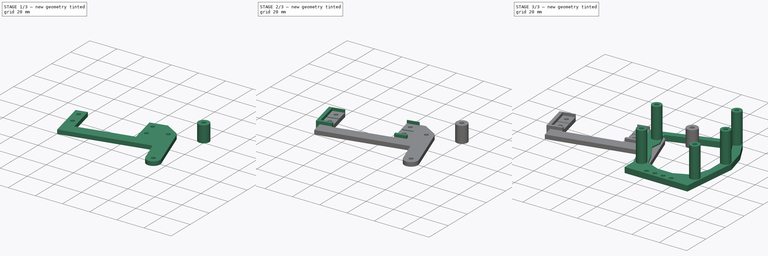
[diagram: build sequence overview — one tinted view per stage of 3, left to right]
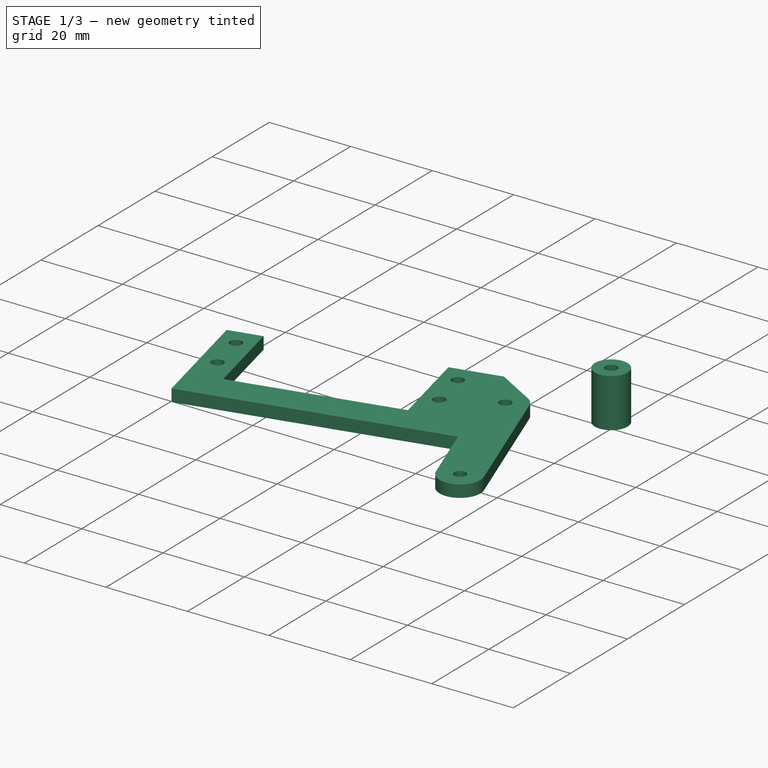
[diagram: stage 1 of 3 — iso view after this stage's code; geometry added in this stage tinted green]
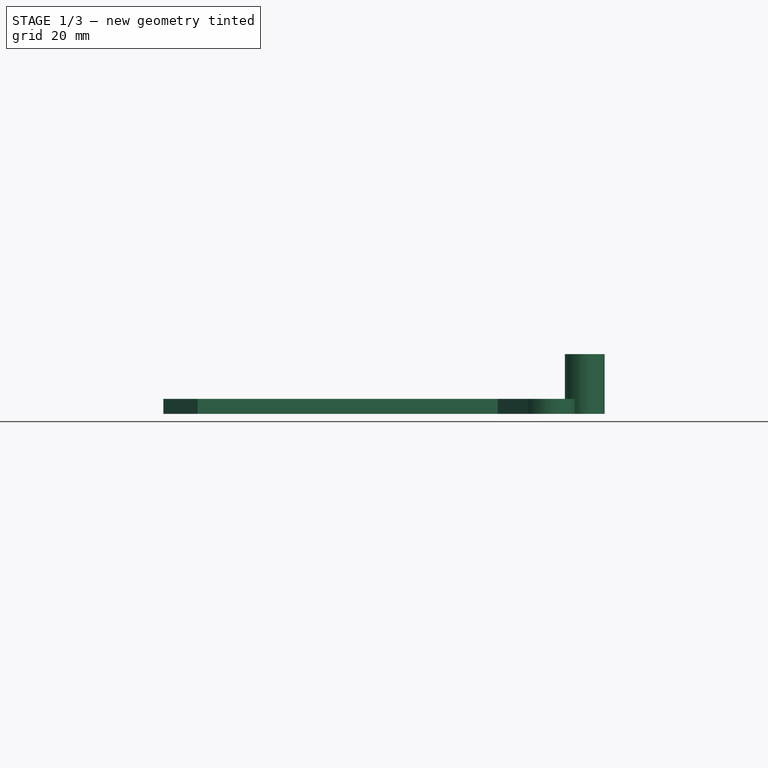
[diagram: stage 1 of 3 — front view after this stage's code; geometry added in this stage tinted green]
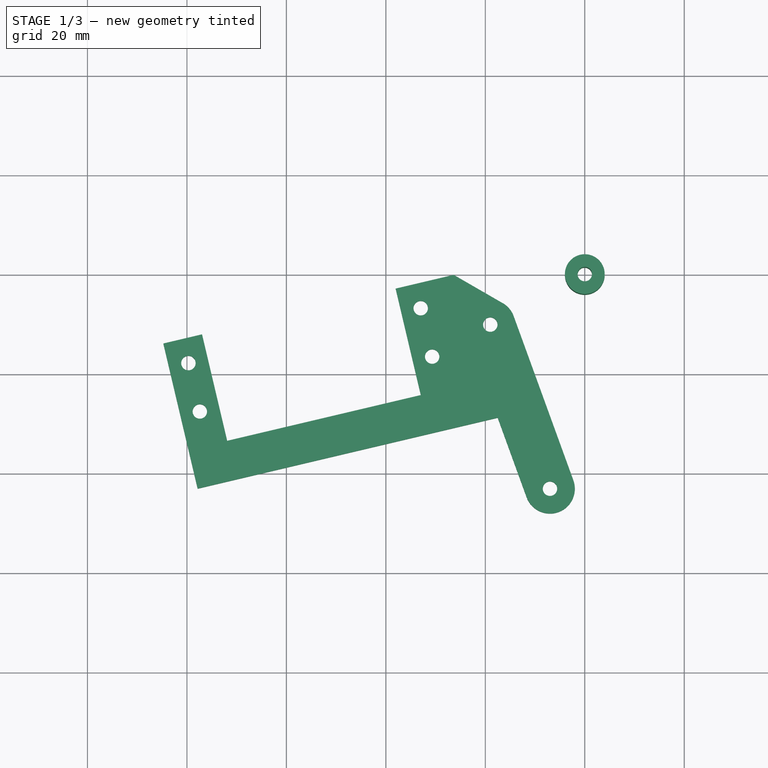
[diagram: stage 1 of 3 — top view after this stage's code; geometry added in this stage tinted green]
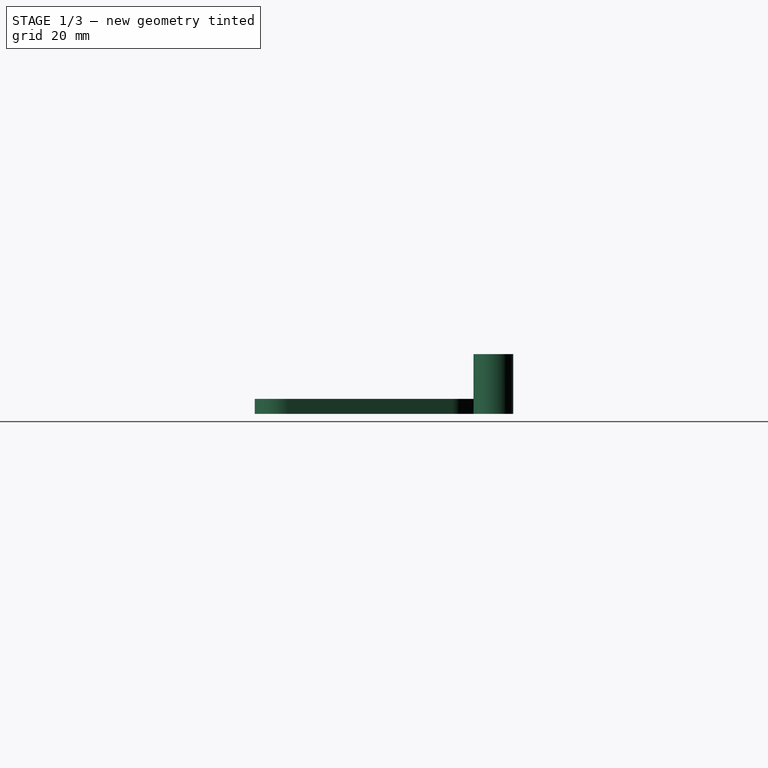
[diagram: stage 1 of 3 — right view after this stage's code; geometry added in this stage tinted green]
FCSTD DOCUMENT  (FreeCAD 0.20R29177 +426 (Git))
Label: gunholder
License: All rights reserved
LicenseURL: http://en.wikipedia.org/wiki/All_rights_reserved
objects: Sketcher::SketchObject×8, PartDesign::Pad×6, PartDesign::Body×3, Image::ImagePlane×1, Spreadsheet::Sheet×1, PartDesign::Pocket×1
note: 25 computed .brp shape members not serialized (recipe doc carries the construction recipe); baked Part::Feature solids carry a one-line shape summary decoded from their .brp

FEATURE [PartDesign::Body] Body
  Group = -> [Sketch,Pad,Sketch001,Pad001]
  Origin = -> Origin
  Tip = -> Pad001
FEATURE [Sketcher::SketchObject] Sketch002
  FullyConstrained = true
  MapMode = 5
  Support = -> [XY_Plane001]
  expr: Constraints[18] = Spreadsheet.servoMountOpenWidth + Spreadsheet.servoMountScrewX * 2
  expr: Constraints[19] = Spreadsheet.servoMountScrewYDist
  expr: Constraints[1] = Spreadsheet.screwTightR
  expr: Constraints[29] = Spreadsheet.screwTightR
  expr: Constraints[2] = Spreadsheet.topScrewX
  expr: Constraints[38] = Spreadsheet.servoMountScrewX
  expr: Constraints[3] = Spreadsheet.bottomScrewXLeft
  expr: Constraints[42] = Spreadsheet.servoMountOpenHeight
  expr: Constraints[47] = Spreadsheet.servoMountScrewYToTop
  expr: Constraints[49] = Spreadsheet.servoMountScrewX * 2
  expr: Constraints[4] = Spreadsheet.topScrewY
  expr: Constraints[52] = Spreadsheet.servoMountOpenHeight + Spreadsheet.servoMountScrewX * 2
  expr: Constraints[53] = Spreadsheet.servoMountOpenWidth
  expr: Constraints[5] = Spreadsheet.bottomScrewY
  sketch-geometry (25):
    g0: Circle CenterX=-19 CenterY=-10 CenterZ=0 NormalX=0 NormalY=0 NormalZ=1 AngleXU=0 Radius=1.45
    g1: Circle CenterX=-7 CenterY=-43 CenterZ=0 NormalX=0 NormalY=0 NormalZ=1 AngleXU=0 Radius=1.45
    g2: ArcOfCircle CenterX=-19 CenterY=-10 CenterZ=0 NormalX=0 NormalY=0 NormalZ=1 AngleXU=0 Radius=5 StartAngle=0.348771 EndAngle=1.12145
    g3: ArcOfCircle CenterX=-7 CenterY=-43 CenterZ=0 NormalX=0 NormalY=0 NormalZ=1 AngleXU=0 Radius=5 StartAngle=3.49036 EndAngle=6.63196
    g4: LineSegment StartX=-17.5086 StartY=-28.7322 StartZ=0 EndX=-11.699 EndY=-44.7087 EndZ=0
    g5: LineSegment StartX=-2.30103 StartY=-41.2913 StartZ=0 EndX=-14.301 EndY=-8.29128 EndZ=0
    g6: LineSegment StartX=-32.9901 StartY=-6.70216 StartZ=0 EndX=-30.6903 EndY=-16.4341 EndZ=0
    g7: LineSegment StartX=-79.7034 StartY=-17.7412 StartZ=0 EndX=-77.4036 EndY=-27.4732 EndZ=0
    g8: LineSegment StartX=-77.4036 StartY=-27.4732 StartZ=0 EndX=-30.6903 EndY=-16.4341 EndZ=0
    g9: Circle CenterX=-79.7034 CenterY=-17.7412 CenterZ=0 NormalX=0 NormalY=0 NormalZ=1 AngleXU=0 Radius=2.27e-14
    g10: Circle CenterX=-77.4036 CenterY=-27.4732 CenterZ=0 NormalX=0 NormalY=0 NormalZ=1 AngleXU=0 Radius=1.45
    g11: Circle CenterX=-32.9901 CenterY=-6.70216 CenterZ=0 NormalX=0 NormalY=0 NormalZ=1 AngleXU=0 Radius=1.45
    g12: Circle CenterX=-30.6903 CenterY=-16.4341 CenterZ=0 NormalX=0 NormalY=0 NormalZ=1 AngleXU=0 Radius=1.45
    g13: Circle CenterX=-79.7034 CenterY=-17.7412 CenterZ=0 NormalX=0 NormalY=0 NormalZ=1 AngleXU=0 Radius=1.45
    g14: LineSegment StartX=-84.7461 StartY=-13.7952 StartZ=0 EndX=-76.9606 EndY=-11.9553 EndZ=0
    g15: LineSegment StartX=-76.9606 StartY=-11.9553 StartZ=0 EndX=-71.901 EndY=-33.3656 EndZ=0
    g16: LineSegment StartX=-71.901 StartY=-33.3656 StartZ=0 EndX=-32.9732 EndY=-24.1664 EndZ=0
    g17: LineSegment StartX=-32.9732 StartY=-24.1664 StartZ=0 EndX=-38.0328 EndY=-2.7561 EndZ=0
    g18: LineSegment StartX=-38.0328 StartY=-2.7561 StartZ=0 EndX=-34.14 EndY=-1.83618 EndZ=0
    g19: LineSegment StartX=-32.9732 StartY=-24.1664 StartZ=0 EndX=-29.0804 EndY=-23.2465 EndZ=0
    g20: LineSegment StartX=-34.14 StartY=-1.83618 StartZ=0 EndX=-32.9901 EndY=-6.70216 EndZ=0
    g21: LineSegment StartX=-84.7461 StartY=-13.7952 StartZ=0 EndX=-77.8467 EndY=-42.991 EndZ=0
    g22: LineSegment StartX=-77.8467 StartY=-42.991 StartZ=0 EndX=-17.5086 EndY=-28.7322 EndZ=0
    g23: LineSegment StartX=-34.14 StartY=-1.83618 StartZ=0 EndX=-26.3544 EndY=0.00366578 EndZ=0
    g24: LineSegment StartX=-26.3544 StartY=0.00366578 StartZ=0 EndX=-16.8281 EndY=-5.49633 EndZ=0
  constraints (67):
    c: Equal(g0,g1)
    c: Radius(g0) = 1.45
    c: DistanceX(g0,g-1) = 19
    c: DistanceX(g1,g-1) = 7
    c: DistanceY(g0,g-1) = 10
    c: DistanceY(g1,g-1) = 43
    c: Tangent(g4,g3) = -1.5708
    c: Tangent(g3,g5) = -1.5708
    c: Tangent(g5,g2) = -1.5708
    c: Equal(g2,g3)
    c: Coincident(g2,g0)
    c: Coincident(g3,g1)
    c: Radius(g2) = 5
    c: Coincident(g8,g7)
    c: Coincident(g8,g6)
    c: Equal(g6,g7)
    c: Perpendicular(g8,g6)
    c: Perpendicular(g8,g7)
    c: Distance(g8) = 48
    c: Distance(g6) = 10
    c: Coincident(g9,g7)
    c: Tangent(g9,g7)
    c: Coincident(g10,g7)
    c: Coincident(g11,g6)
    c: Coincident(g12,g6)
    c: Coincident(g13,g9)
    c: Equal(g13,g11)
    c: Equal(g13,g12)
    c: Equal(g13,g10)
    c: Radius(g13) = 1.45
    c: Coincident(g15,g14)
    c: Coincident(g16,g15)
    c: Coincident(g17,g16)
    c: Coincident(g18,g17)
    c: Parallel(g17,g6)
    c: Coincident(g19,g16)
    c: PointOnObject(g19,g6)
    c: Parallel(g19,g8)
    c: Distance(g19) = 4
    c: Parallel(g16,g8)
    c: Parallel(g15,g7)
    c: Equal(g17,g15)
    c: Distance(g17) = 22
    c: Parallel(g18,g8)
    c: Coincident(g20,g18)
    c: Coincident(g20,g11)
    c: Parallel(g20,g17)
    c: Distance(g20) = 5
    c: Parallel(g14,g8)
    c: Distance(g14) = 8
    c: Coincident(g21,g14)
    c: Parallel(g21,g15)
    c: Distance(g21) = 30
    c: Distance(g16) = 40
    c: Coincident(g22,g21)
    c: Parallel(g22,g16)
    c: Coincident(g23,g18)
    c: Coincident(g24,g23)
    c: Coincident(g2,g24)
    c: Coincident(g4,g22)
    c: Distance(g22) = 62
    c: Parallel(g23,g8)
    c: Parallel(g4,g5)
    c: Distance(g24) = 11
    c: Angle(g24,g-1) = 0.523599
    c: Distance(g4) = 17
    c: Distance(g23) = 8
FEATURE [Sketcher::SketchObject] Sketch003
  ExternalGeometry = -> [Sketch002]
  FullyConstrained = true
  MapMode = 5
  Support = -> [XY_Plane001]
  expr: Constraints[37] = Spreadsheet.screwTightR
  sketch-geometry (18):
    g0: LineSegment StartX=-84.7461 StartY=-13.7952 StartZ=0 EndX=-76.9606 EndY=-11.9553 EndZ=0
    g1: LineSegment StartX=-76.9606 StartY=-11.9553 StartZ=0 EndX=-71.901 EndY=-33.3656 EndZ=0
    g2: LineSegment StartX=-71.901 StartY=-33.3656 StartZ=0 EndX=-32.9732 EndY=-24.1664 EndZ=0
    g3: LineSegment StartX=-32.9732 StartY=-24.1664 StartZ=0 EndX=-38.0328 EndY=-2.7561 EndZ=0
    g4: LineSegment StartX=-38.0328 StartY=-2.7561 StartZ=0 EndX=-26.3544 EndY=0.00366578 EndZ=0
    g5: LineSegment StartX=-26.3544 StartY=0.00366578 StartZ=0 EndX=-16.8281 EndY=-5.49633 EndZ=0
    g6: LineSegment StartX=-14.301 StartY=-8.29128 StartZ=0 EndX=-2.30103 EndY=-41.2913 EndZ=0
    g7: LineSegment StartX=-11.699 StartY=-44.7087 StartZ=0 EndX=-17.5086 EndY=-28.7322 EndZ=0
    g8: LineSegment StartX=-17.5086 StartY=-28.7322 StartZ=0 EndX=-77.8467 EndY=-42.991 EndZ=0
    g9: LineSegment StartX=-77.8467 StartY=-42.991 StartZ=0 EndX=-84.7461 EndY=-13.7952 EndZ=0
    g10: ArcOfCircle CenterX=-19 CenterY=-10 CenterZ=0 NormalX=0 NormalY=0 NormalZ=1 AngleXU=0 Radius=5 StartAngle=0.348771 EndAngle=1.12145
    g11: ArcOfCircle CenterX=-7 CenterY=-43 CenterZ=0 NormalX=0 NormalY=0 NormalZ=1 AngleXU=0 Radius=5 StartAngle=3.49036 EndAngle=6.63196
    g12: Circle CenterX=-79.7034 CenterY=-17.7412 CenterZ=0 NormalX=0 NormalY=0 NormalZ=1 AngleXU=0 Radius=1.45
    g13: Circle CenterX=-77.4036 CenterY=-27.4732 CenterZ=0 NormalX=0 NormalY=0 NormalZ=1 AngleXU=0 Radius=1.45
    g14: Circle CenterX=-32.9901 CenterY=-6.70216 CenterZ=0 NormalX=0 NormalY=0 NormalZ=1 AngleXU=0 Radius=1.45
    g15: Circle CenterX=-30.6903 CenterY=-16.4341 CenterZ=0 NormalX=0 NormalY=0 NormalZ=1 AngleXU=0 Radius=1.45
    g16: Circle CenterX=-19 CenterY=-10 CenterZ=0 NormalX=0 NormalY=0 NormalZ=1 AngleXU=0 Radius=1.45
    g17: Circle CenterX=-7 CenterY=-43 CenterZ=0 NormalX=0 NormalY=0 NormalZ=1 AngleXU=0 Radius=1.45
  constraints (38):
    c: Coincident(g0,g-3)
    c: Coincident(g0,g-4)
    c: Coincident(g1,g0)
    c: Coincident(g1,g-5)
    c: Coincident(g2,g1)
    c: Coincident(g2,g-6)
    c: Coincident(g3,g2)
    c: Coincident(g3,g-6)
    c: Coincident(g4,g3)
    c: Coincident(g4,g-8)
    c: Coincident(g5,g4)
    c: Coincident(g5,g-9)
    c: Coincident(g6,g-10)
    c: Coincident(g6,g-11)
    c: Coincident(g7,g-12)
    c: Coincident(g7,g-13)
    c: Coincident(g8,g7)
    c: Coincident(g8,g-13)
    c: Coincident(g9,g8)
    c: Coincident(g9,g0)
    c: Coincident(g10,g-9)
    c: Coincident(g10,g5)
    c: Coincident(g10,g-9)
    c: Coincident(g11,g-11)
    c: Tangent(g11,g6) = 1.5708
    c: Coincident(g11,g7)
    c: Coincident(g12,g-14)
    c: Coincident(g13,g-15)
    c: Coincident(g14,g-18)
    c: Coincident(g15,g-17)
    c: Coincident(g16,g10)
    c: Coincident(g17,g11)
    c: Equal(g13,g12)
    c: Equal(g13,g15)
    c: Equal(g13,g14)
    c: Equal(g13,g16)
    c: Equal(g13,g17)
    c: Radius(g13) = 1.45
FEATURE [PartDesign::Pad] Pad002
  Direction = (0,0,1)
  Length = 3
  Length2 = 10
  Profile = -> Sketch003
  ReferenceAxis = -> Sketch003 [N_Axis]
  Type = 0
  expr: Length = Spreadsheet.servoMountPad
FEATURE [PartDesign::Body] Body001  label="Body001ServoMount"
  Group = -> [Sketch002,Sketch003,Pad002,Sketch004,Pad003,Sketch005,Pocket,Sketch006,Pad004]
  Origin = -> Origin001
  Tip = -> Pad004
FEATURE [Sketcher::SketchObject] Sketch007
  FullyConstrained = true
  MapMode = 5
  Support = -> [XY_Plane002]
  expr: Constraints[2] = Spreadsheet.screwTightR
  sketch-geometry (2):
    g0: Circle CenterX=0 CenterY=0 CenterZ=0 NormalX=0 NormalY=0 NormalZ=1 AngleXU=0 Radius=1.45
    g1: Circle CenterX=0 CenterY=0 CenterZ=0 NormalX=0 NormalY=0 NormalZ=1 AngleXU=0 Radius=4
  constraints (4):
    c: Coincident(g0,g-1)
    c: Coincident(g1,g0)
    c: Radius(g0) = 1.45
    c: Radius(g1) = 4
FEATURE [PartDesign::Pad] Pad005
  Direction = (0,0,1)
  Length = 12
  Length2 = 10
  Profile = -> Sketch007
  ReferenceAxis = -> Sketch007 [N_Axis]
  Type = 0
FEATURE [PartDesign::Body] Body002  label="Body002TriggerRod"
  Group = -> [Sketch007,Pad005]
  Origin = -> Origin002
  Tip = -> Pad005
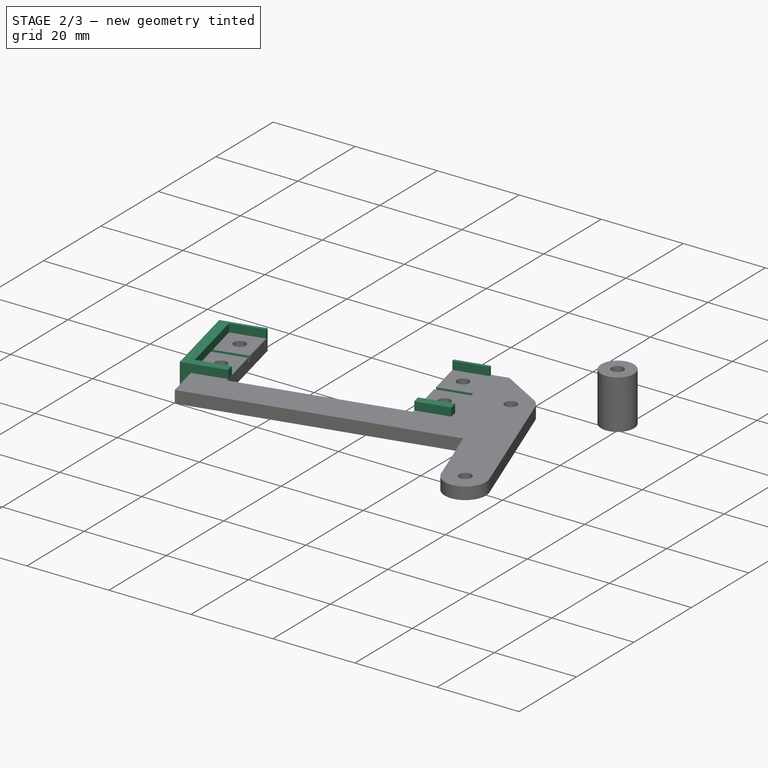
[diagram: stage 2 of 3 — iso view after this stage's code; geometry added in this stage tinted green]
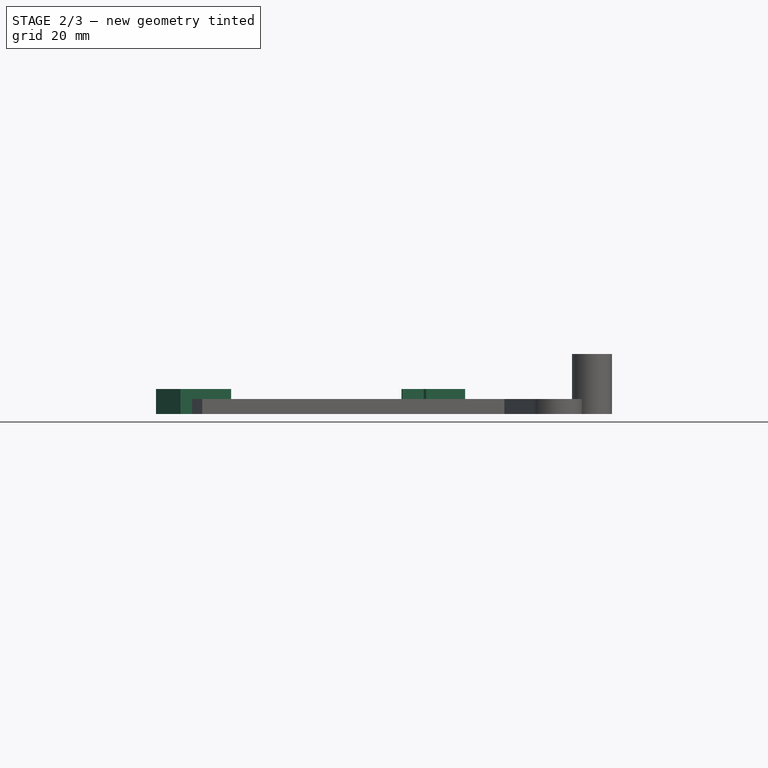
[diagram: stage 2 of 3 — front view after this stage's code; geometry added in this stage tinted green]
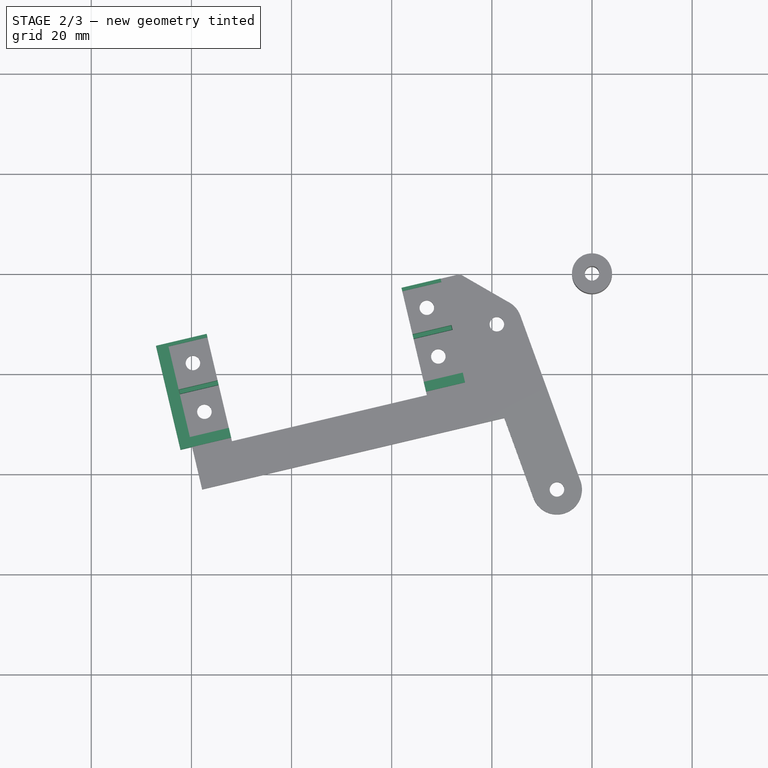
[diagram: stage 2 of 3 — top view after this stage's code; geometry added in this stage tinted green]
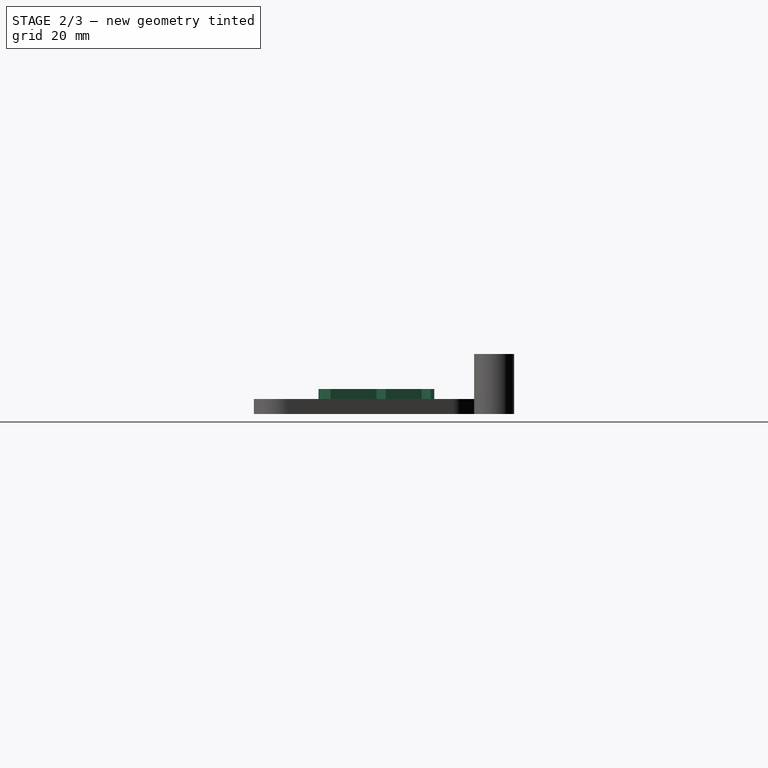
[diagram: stage 2 of 3 — right view after this stage's code; geometry added in this stage tinted green]
FEATURE [Sketcher::SketchObject] Sketch004
  ExternalGeometry = -> [Pad002]
  FullyConstrained = false
  MapMode = 5
  Support = -> [XY_Plane001]
  expr: Constraints[4] = Spreadsheet.servoMountScrewCenterToOutsideEdge
  expr: Constraints[53] = Spreadsheet.servoMountScrewX * 2
  expr: Constraints[54] = Spreadsheet.servoMountScrewX * 2
  expr: Constraints[5] = Spreadsheet.servoMountScrewCenterToOutsideEdge
  expr: Constraints[8] = Spreadsheet.servoMountScrewCenterToOutsideEdge
  expr: Constraints[9] = Spreadsheet.servoMountScrewCenterToOutsideEdge
  sketch-geometry (19):
    g0: LineSegment StartX=-95.4678 StartY=48.9676 StartZ=0 EndX=-89.5549 EndY=23.9464 EndZ=0
    g1: LineSegment StartX=-33.979 StartY=-2.51742 StartZ=0 EndX=-29.7013 EndY=-20.6188 EndZ=0
    g2: LineSegment StartX=-75.438 StartY=-17.1973 StartZ=0 EndX=-23.2655 EndY=-10.544 EndZ=0
    g3: LineSegment StartX=-84.7461 StartY=-13.7952 StartZ=0 EndX=-76.9606 EndY=-11.9553 EndZ=0
    g4: LineSegment StartX=-76.9606 StartY=-11.9553 StartZ=0 EndX=-76.7996 EndY=-12.6366 EndZ=0
    g5: LineSegment StartX=-76.7996 StartY=-12.6366 StartZ=0 EndX=-84.5851 EndY=-14.4764 EndZ=0
    g6: LineSegment StartX=-84.5851 StartY=-14.4764 StartZ=0 EndX=-84.7461 EndY=-13.7952 EndZ=0
    g7: LineSegment StartX=-80.3075 StartY=-32.5779 StartZ=0 EndX=-72.5219 EndY=-30.738 EndZ=0
    g8: LineSegment StartX=-80.3075 StartY=-32.5779 StartZ=0 EndX=-79.8475 EndY=-34.5242 EndZ=0
    g9: LineSegment StartX=-79.8475 StartY=-34.5242 StartZ=0 EndX=-72.062 EndY=-32.6844 EndZ=0
    g10: LineSegment StartX=-72.062 StartY=-32.6844 StartZ=0 EndX=-72.5219 EndY=-30.738 EndZ=0
    g11: LineSegment StartX=-38.0328 StartY=-2.7561 StartZ=0 EndX=-30.2472 EndY=-0.916258 EndZ=0
    g12: LineSegment StartX=-30.2472 StartY=-0.916258 StartZ=0 EndX=-30.0862 EndY=-1.59749 EndZ=0
    g13: LineSegment StartX=-30.0862 StartY=-1.59749 StartZ=0 EndX=-37.8718 EndY=-3.43734 EndZ=0
    g14: LineSegment StartX=-37.8718 StartY=-3.43734 StartZ=0 EndX=-38.0328 EndY=-2.7561 EndZ=0
    g15: LineSegment StartX=-25.8086 StartY=-19.6989 StartZ=0 EndX=-25.3486 EndY=-21.6453 EndZ=0
    g16: LineSegment StartX=-25.3486 StartY=-21.6453 StartZ=0 EndX=-33.1342 EndY=-23.4852 EndZ=0
    g17: LineSegment StartX=-33.1342 StartY=-23.4852 StartZ=0 EndX=-33.5941 EndY=-21.5388 EndZ=0
    g18: LineSegment StartX=-25.8086 StartY=-19.6989 StartZ=0 EndX=-33.5941 EndY=-21.5388 EndZ=0
  constraints (55):
    c: PointOnObject(g-3,g0)
    c: PointOnObject(g-4,g0)
    c: PointOnObject(g-5,g1)
    c: PointOnObject(g-6,g1)
    c: Distance(g1,g-5) = 4.3
    c: Distance(g-6,g1) = 4.3
    c: PointOnObject(g-3,g2)
    c: PointOnObject(g-7,g2)
    c: Distance(g-3,g2) = 4.3
    c: Distance(g-7,g2) = 4.3
    c: Coincident(g3,g-8)
    c: Coincident(g3,g-8)
    c: Coincident(g4,g3)
    c: PointOnObject(g4,g-10)
    c: Coincident(g5,g4)
    c: PointOnObject(g5,g-11)
    c: Coincident(g6,g5)
    c: Coincident(g6,g3)
    c: Parallel(g5,g3)
    c: PointOnObject(g1,g5)
    c: PointOnObject(g7,g-11)
    c: PointOnObject(g7,g-10)
    c: PointOnObject(g1,g7)
    c: Parallel(g7,g5)
    c: Coincident(g8,g7)
    c: PointOnObject(g8,g-11)
    c: Coincident(g9,g8)
    c: PointOnObject(g9,g-10)
    c: Coincident(g10,g9)
    c: Coincident(g10,g7)
    c: Distance(g10) = 2
    c: Parallel(g9,g7)
    c: Coincident(g11,g-12)
    c: PointOnObject(g11,g-9)
    c: Coincident(g12,g11)
    c: Coincident(g13,g12)
    c: PointOnObject(g13,g-12)
    c: Coincident(g14,g13)
    c: Coincident(g14,g11)
    c: Parallel(g12,g14)
    c: Parallel(g13,g11)
    c: PointOnObject(g1,g13)
    c: Parallel(g15,g-12)
    c: Coincident(g16,g15)
    c: Coincident(g17,g16)
    c: Coincident(g18,g17)
    c: Coincident(g18,g15)
    c: PointOnObject(g1,g18)
    c: Parallel(g18,g13)
    c: Parallel(g18,g16)
    c: Parallel(g17,g15)
    c: PointOnObject(g16,g-12)
    c: Distance(g15) = 2
    c: Distance(g18) = 8
    c: Distance(g13) = 8
FEATURE [PartDesign::Pad] Pad003
  BaseFeature = -> Pad002
  Direction = (0,0,1)
  Length = 5
  Length2 = 10
  Profile = -> Sketch004
  ReferenceAxis = -> Sketch004 [N_Axis]
  Type = 0
  expr: Length = Spreadsheet.servoMountEdgeOutPad
FEATURE [Sketcher::SketchObject] Sketch005
  ExternalGeometry = -> [Pad003,Sketch003]
  FullyConstrained = true
  MapMode = 5
  Placement = pos=(0,0,3) rot=(0,0,1;0rad)
  Support = -> [Pad003]
  expr: Constraints[16] = Spreadsheet.servoMountScrewCenterCliv
  expr: Constraints[17] = Spreadsheet.servoMountScrewCenterCliv
  expr: Constraints[18] = Spreadsheet.servoMountScrewCenterCliv
  expr: Constraints[19] = Spreadsheet.servoMountScrewCenterCliv
  expr: Constraints[31] = Spreadsheet.servoMountScrewX
  expr: Constraints[6] = Spreadsheet.servoMountScrewYDist / 2
  expr: Constraints[7] = Spreadsheet.servoMountScrewYDist / 2
  sketch-geometry (11):
    g0: LineSegment StartX=-79.7034 StartY=-17.7412 StartZ=0 EndX=-77.4036 EndY=-27.4732 EndZ=0
    g1: LineSegment StartX=-32.9901 StartY=-6.70216 StartZ=0 EndX=-30.6903 EndY=-16.4341 EndZ=0
    g2: LineSegment StartX=-78.5535 StartY=-22.6072 StartZ=0 EndX=-31.8402 EndY=-11.5681 EndZ=0
    g3: LineSegment StartX=-78.6685 StartY=-22.1206 StartZ=0 EndX=-78.4385 EndY=-23.0938 EndZ=0
    g4: LineSegment StartX=-78.4385 StartY=-23.0938 StartZ=0 EndX=-31.7252 EndY=-12.0547 EndZ=0
    g5: LineSegment StartX=-31.7252 StartY=-12.0547 StartZ=0 EndX=-31.9552 EndY=-11.0815 EndZ=0
    g6: LineSegment StartX=-31.9552 StartY=-11.0815 StartZ=0 EndX=-78.6685 EndY=-22.1206 EndZ=0
    g7: LineSegment StartX=-82.5613 StartY=-23.0405 StartZ=0 EndX=-28.0624 EndY=-10.1616 EndZ=0
    g8: LineSegment StartX=-28.0624 StartY=-10.1616 StartZ=0 EndX=-27.8324 EndY=-11.1348 EndZ=0
    g9: LineSegment StartX=-27.8324 StartY=-11.1348 StartZ=0 EndX=-82.3313 EndY=-24.0137 EndZ=0
    g10: LineSegment StartX=-82.3313 StartY=-24.0137 StartZ=0 EndX=-82.5613 EndY=-23.0405 EndZ=0
  constraints (32):
    c: Coincident(g0,g-3)
    c: Coincident(g0,g-4)
    c: Coincident(g1,g-5)
    c: Coincident(g1,g-6)
    c: PointOnObject(g2,g0)
    c: PointOnObject(g2,g1)
    c: Distance(g1,g2) = 5
    c: Distance(g0,g2) = 5
    c: PointOnObject(g3,g0)
    c: PointOnObject(g3,g0)
    c: Coincident(g4,g3)
    c: PointOnObject(g4,g1)
    c: Coincident(g5,g4)
    c: PointOnObject(g5,g1)
    c: Coincident(g6,g5)
    c: Coincident(g6,g3)
    c: Distance(g5,g2) = 0.5
    c: Distance(g2,g4) = 0.5
    c: Distance(g2,g3) = 0.5
    c: Distance(g3,g2) = 0.5
    c: Coincident(g8,g7)
    c: Coincident(g9,g8)
    c: Coincident(g10,g9)
    c: Coincident(g10,g7)
    c: PointOnObject(g3,g7)
    c: PointOnObject(g3,g9)
    c: PointOnObject(g5,g7)
    c: PointOnObject(g4,g9)
    c: PointOnObject(g7,g-7)
    c: PointOnObject(g9,g-7)
    c: Parallel(g8,g10)
    c: Distance(g7,g5) = 4
FEATURE [PartDesign::Pocket] Pocket
  BaseFeature = -> Pad003
  Direction = (0,0,-1)
  Length = 1
  Length2 = 5
  Profile = -> Sketch005
  ReferenceAxis = -> Sketch005 [N_Axis]
  TaperAngle = -5
  Type = 0
FEATURE [Sketcher::SketchObject] Sketch006
  ExternalGeometry = -> [Pocket,Sketch003]
  FullyConstrained = false
  MapMode = 5
  Support = -> [XY_Plane001]
  sketch-geometry (4):
    g0: LineSegment StartX=-82.1793 StartY=-35.0753 StartZ=0 EndX=-87.0778 EndY=-14.3462 EndZ=0
    g1: LineSegment StartX=-87.0778 StartY=-14.3462 StartZ=0 EndX=-84.7461 EndY=-13.7952 EndZ=0
    g2: LineSegment StartX=-84.7461 StartY=-13.7952 StartZ=0 EndX=-79.8475 EndY=-34.5242 EndZ=0
    g3: LineSegment StartX=-79.8475 StartY=-34.5242 StartZ=0 EndX=-82.1793 EndY=-35.0753 EndZ=0
  constraints (9):
    c: Coincident(g1,g0)
    c: Coincident(g2,g1)
    c: Coincident(g3,g2)
    c: Coincident(g3,g0)
    c: Parallel(g1,g3)
    c: Coincident(g1,g-3)
    c: Parallel(g1,g-6)
    c: Parallel(g0,g2)
    c: Coincident(g2,g-5)
FEATURE [PartDesign::Pad] Pad004
  BaseFeature = -> Pocket
  Direction = (0,0,1)
  Length = 5
  Length2 = 10
  Profile = -> Sketch006
  ReferenceAxis = -> Sketch006 [N_Axis]
  Type = 0
  expr: Length = Spreadsheet.servoMountEdgeOutPad
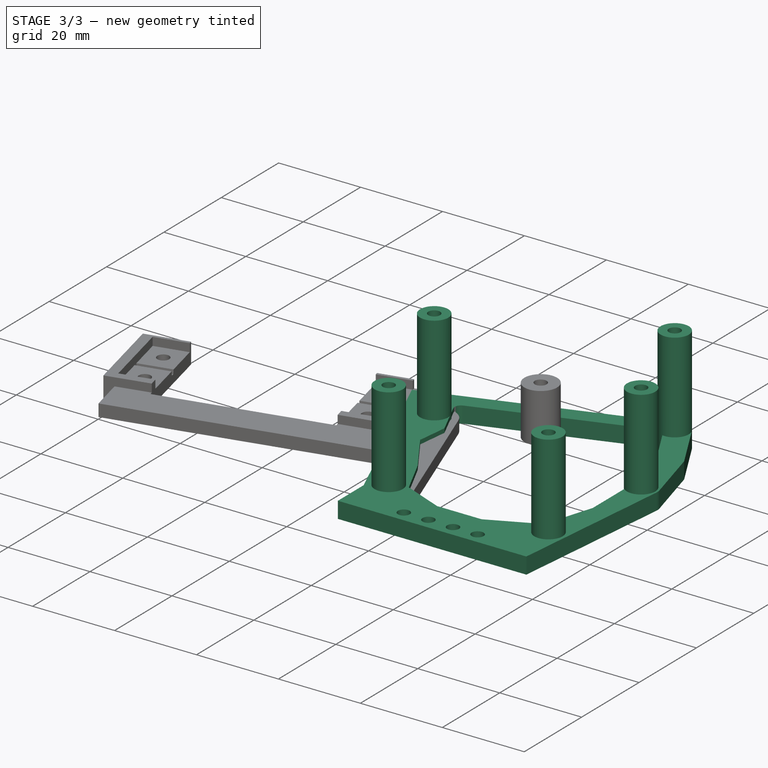
[diagram: stage 3 of 3 — iso view after this stage's code; geometry added in this stage tinted green]
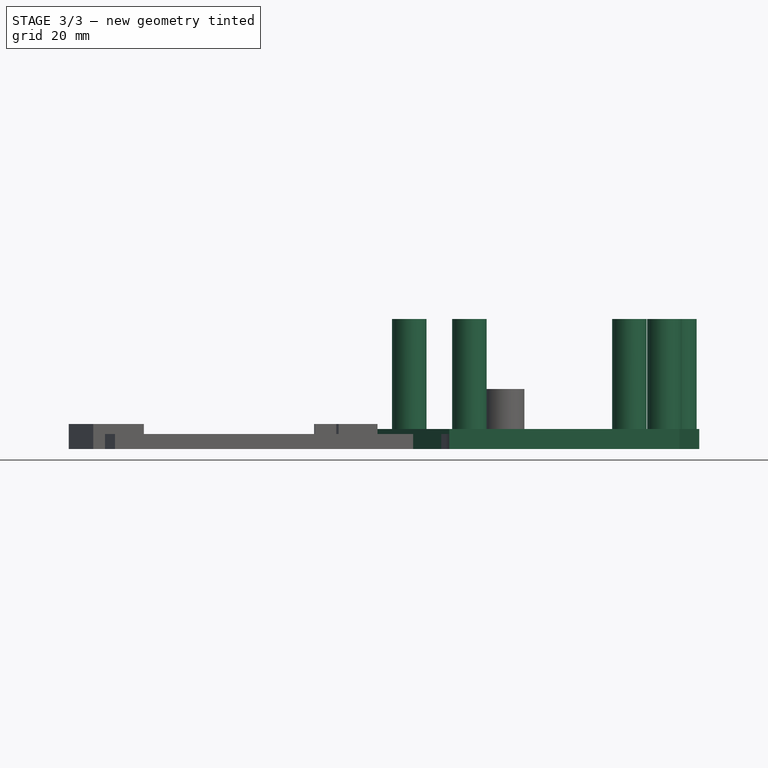
[diagram: stage 3 of 3 — front view after this stage's code; geometry added in this stage tinted green]
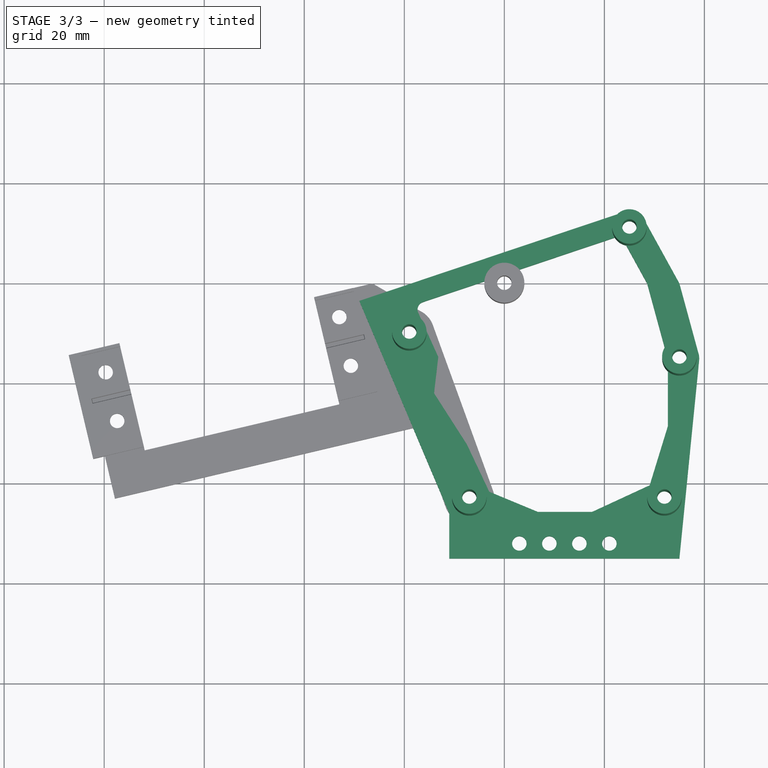
[diagram: stage 3 of 3 — top view after this stage's code; geometry added in this stage tinted green]
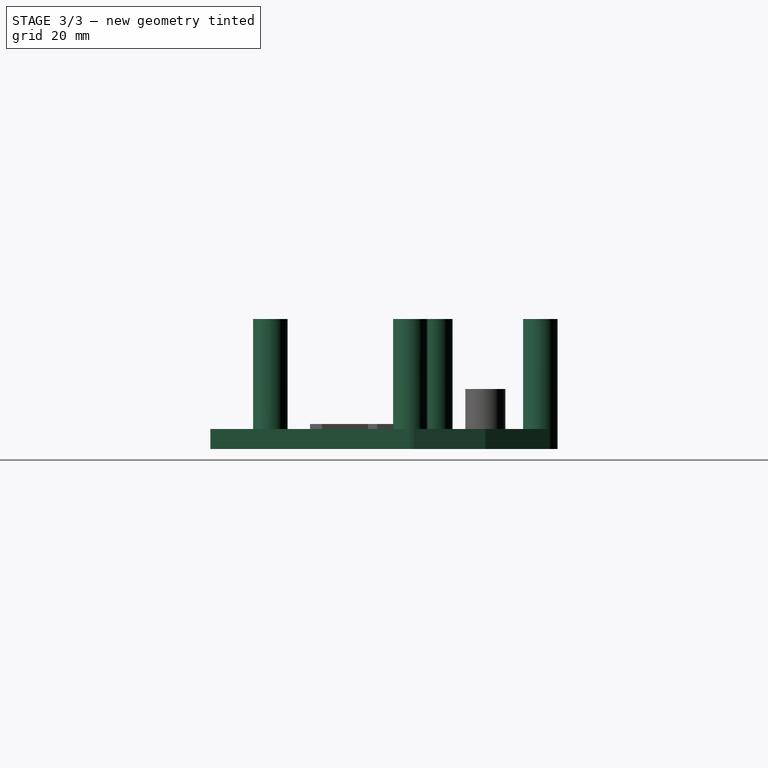
[diagram: stage 3 of 3 — right view after this stage's code; geometry added in this stage tinted green]
FEATURE [Image::ImagePlane] ImagePlane
  XSize = 165.905
  YSize = 124.428
FEATURE [Sketcher::SketchObject] Sketch
  FullyConstrained = false
  MapMode = 5
  Support = -> [XY_Plane]
  expr: Constraints[10] = Spreadsheet.bottomScrewX
  expr: Constraints[13] = Spreadsheet.screwTightR
  expr: Constraints[14] = Spreadsheet.bottomScrewY
  expr: Constraints[16] = Spreadsheet.bottomScrewXLeft
  expr: Constraints[37] = Spreadsheet.screwTightR
  expr: Constraints[38] = Spreadsheet.topScrewXLeft
  expr: Constraints[39] = Spreadsheet.topScrewYLeft
  expr: Constraints[46] = Spreadsheet.screwToSide
  expr: Constraints[51] = Spreadsheet.screwToSide * 2
  expr: Constraints[52] = Spreadsheet.screwToSide * 2
  expr: Constraints[53] = Spreadsheet.screwToSide * 2
  expr: Constraints[54] = Spreadsheet.screwToSide
  expr: Constraints[58] = Spreadsheet.middleScrewX
  expr: Constraints[59] = Spreadsheet.middleScrewY
  expr: Constraints[61] = Spreadsheet.screwHolderR
  expr: Constraints[7] = Spreadsheet.topScrewY
  expr: Constraints[8] = Spreadsheet.topScrewX
  expr: Constraints[9] = Spreadsheet.bottomScrewY
  sketch-geometry (33):
    g0: LineSegment StartX=-11 StartY=-55 StartZ=0 EndX=35 EndY=-55 EndZ=0
    g1: LineSegment StartX=-29 StartY=-3.5 StartZ=0 EndX=-11 EndY=-46 EndZ=0
    g2: LineSegment StartX=-11 StartY=-46 StartZ=0 EndX=-11 EndY=-55 EndZ=0
    g3: Circle CenterX=-19 CenterY=-10 CenterZ=0 NormalX=0 NormalY=0 NormalZ=1 AngleXU=0 Radius=1.45
    g4: Circle CenterX=32 CenterY=-43 CenterZ=0 NormalX=0 NormalY=0 NormalZ=1 AngleXU=0 Radius=1.45
    g5: Circle CenterX=-7 CenterY=-43 CenterZ=0 NormalX=0 NormalY=0 NormalZ=1 AngleXU=0 Radius=1.45
    g6: Circle CenterX=25 CenterY=11 CenterZ=0 NormalX=0 NormalY=0 NormalZ=1 AngleXU=0 Radius=1.45
    g7: LineSegment StartX=28.0217 StartY=12.6649 StartZ=0 EndX=35 EndY=0 EndZ=0
    g8: LineSegment StartX=35 StartY=0 StartZ=0 EndX=38.8937 EndY=-14.2701 EndZ=0
    g9: LineSegment StartX=-29 StartY=-3.5 StartZ=0 EndX=23.9014 EndY=14.2704 EndZ=0
    g10: LineSegment StartX=-16.2939 StartY=-3.73002 StartZ=0 EndX=22.0812 EndY=9.16075 EndZ=0
    g11: LineSegment StartX=24.36 StartY=7.60988 StartZ=0 EndX=28.553 EndY=0 EndZ=0
    g12: LineSegment StartX=28.553 StartY=0 StartZ=0 EndX=32.7032 EndY=-15.21 EndZ=0
    g13: LineSegment StartX=32.7032 StartY=-15.21 StartZ=0 EndX=32.7032 EndY=-28.5252 EndZ=0
    g14: LineSegment StartX=32.7032 StartY=-28.5252 StartZ=0 EndX=29.0612 EndY=-40.3656 EndZ=0
    g15: LineSegment StartX=29.0612 StartY=-40.3656 StartZ=0 EndX=17.5561 EndY=-45.6847 EndZ=0
    g16: LineSegment StartX=17.5561 StartY=-45.6847 StartZ=0 EndX=6.70007 EndY=-45.6847 EndZ=0
    g17: LineSegment StartX=6.70007 StartY=-45.6847 StartZ=0 EndX=-3.01781 EndY=-41.6574 EndZ=0
    g18: LineSegment StartX=-3.01781 StartY=-41.6574 StartZ=0 EndX=-7.48277 EndY=-32.2022 EndZ=0
    g19: LineSegment StartX=-7.48277 StartY=-32.2022 StartZ=0 EndX=-14.0489 EndY=-21.959 EndZ=0
    g20: LineSegment StartX=-14.0489 StartY=-21.959 StartZ=0 EndX=-13.2069 EndY=-14.7033 EndZ=0
    g21: LineSegment StartX=-13.2069 StartY=-14.7033 StartZ=0 EndX=-17.2177 EndY=-5.85191 EndZ=0
    g22: LineSegment StartX=38.947 StartY=-15.3383 StartZ=0 EndX=35 EndY=-55 EndZ=0
    g23: ArcOfCircle CenterX=35 CenterY=-15 CenterZ=0 NormalX=0 NormalY=0 NormalZ=1 AngleXU=0 Radius=3.9615 StartAngle=6.19769 EndAngle=6.4685
    g24: Circle CenterX=35 CenterY=-15 CenterZ=0 NormalX=0 NormalY=0 NormalZ=1 AngleXU=0 Radius=1.45
    g25: Circle CenterX=3 CenterY=-52 CenterZ=0 NormalX=0 NormalY=0 NormalZ=1 AngleXU=0 Radius=1.45
    g26: Circle CenterX=9 CenterY=-52 CenterZ=0 NormalX=0 NormalY=0 NormalZ=1 AngleXU=0 Radius=1.45
    g27: Circle CenterX=15 CenterY=-52 CenterZ=0 NormalX=0 NormalY=0 NormalZ=1 AngleXU=0 Radius=1.45
    g28: Circle CenterX=21 CenterY=-52 CenterZ=0 NormalX=0 NormalY=0 NormalZ=1 AngleXU=0 Radius=1.45
    g29: LineSegment StartX=3 StartY=-52 StartZ=0 EndX=21 EndY=-52 EndZ=0
    g30: ArcOfCircle CenterX=25 CenterY=11 CenterZ=0 NormalX=0 NormalY=0 NormalZ=1 AngleXU=0 Radius=3.45 StartAngle=0.503608 EndAngle=1.89487
    g31: ArcOfCircle CenterX=25 CenterY=11 CenterZ=0 NormalX=0 NormalY=0 NormalZ=1 AngleXU=0 Radius=3.45 StartAngle=3.70387 EndAngle=4.5258
    g32: ArcOfCircle CenterX=-15.7973 CenterY=-5.20828 CenterZ=0 NormalX=0 NormalY=0 NormalZ=1 AngleXU=0 Radius=1.55943 StartAngle=1.89487 EndAngle=3.56705
  constraints (73):
    c: Horizontal(g0)
    c: PointOnObject(g7,g-1)
    c: Coincident(g2,g0)
    c: Vertical(g2)
    c: DistanceY(g0,g-1) = 55
    c: DistanceX(g1,g-1) = 29
    c: DistanceY(g1,g-1) = 3.5
    c: DistanceY(g3,g-1) = 10
    c: DistanceX(g3,g-1) = 19
    c: DistanceY(g4,g-1) = 43
    c: DistanceX(g-1,g4) = 32
    c: DistanceX(g4,g0) = 3
    c: Equal(g4,g3)
    c: Radius(g4) = 1.45
    c: DistanceY(g5,g-1) = 43
    c: Equal(g3,g5)
    c: DistanceX(g5,g-1) = 7
    c: Equal(g3,g6)
    c: Coincident(g2,g1)
    c: DistanceX(g0,g-1) = 11
    c: DistanceX(g-1,g7) = 35
    c: Coincident(g8,g7)
    c: Coincident(g9,g1)
    c: PointOnObject(g11,g-1)
    c: Coincident(g12,g11)
    c: Vertical(g13)
    c: Coincident(g14,g13)
    c: Coincident(g15,g14)
    c: Coincident(g16,g15)
    c: Horizontal(g16)
    c: Coincident(g17,g16)
    c: Coincident(g18,g17)
    c: Coincident(g19,g18)
    c: Coincident(g20,g19)
    c: Coincident(g21,g20)
    c: Coincident(g23,g8)
    c: Coincident(g23,g22)
    c: Radius(g24) = 1.45
    c: DistanceX(g-1,g6) = 25
    c: DistanceY(g-1,g6) = 11
    c: DistanceY(g1,g-1) = 46
    c: Coincident(g29,g25)
    c: Coincident(g29,g28)
    c: Horizontal(g29)
    c: PointOnObject(g27,g29)
    c: PointOnObject(g26,g29)
    c: DistanceY(g0,g25) = 3
    c: Equal(g25,g26)
    c: Equal(g26,g27)
    c: Equal(g27,g28)
    c: Equal(g28,g5)
    c: DistanceX(g25,g26) = 6
    c: DistanceX(g26,g27) = 6
    c: DistanceX(g27,g28) = 6
    c: DistanceX(g-1,g25) = 3
    c: Coincident(g22,g0)
    c: Coincident(g12,g13)
    c: Coincident(g24,g23)
    c: DistanceX(g-1,g23) = 35
    c: DistanceY(g23,g-1) = 15
    c: Coincident(g30,g6)
    c: Radius(g30) = 3.45
    c: Tangent(g30,g7) = 1.5708
    c: Equal(g30,g31)
    c: Tangent(g30,g9) = 1.5708
    c: Coincident(g30,g31)
    c: Coincident(g10,g31)
    c: Coincident(g11,g31)
    c: Parallel(g11,g7)
    c: Parallel(g12,g8)
    c: Parallel(g9,g10)
    c: Tangent(g10,g32) = 1.5708
    c: Tangent(g21,g32) = 1.5708
FEATURE [PartDesign::Pad] Pad  label="PadTopPlate"
  Direction = (0,0,1)
  Length = 4
  Length2 = 10
  Profile = -> Sketch
  ReferenceAxis = -> Sketch [N_Axis]
  Type = 0
FEATURE [Spreadsheet::Sheet] Spreadsheet
  cells = A2=screwTightR; B2(screwTightR)=1.45; A3=screwToSide; B3(screwToSide)=3; A4=screwHolderR; B4(screwHolderR)==B2 + 2; A8=topScrewY; B8(topScrewY)=10; A9=topScrewX; B9(topScrewX)=19; A10=bottomScrewY; B10(bottomScrewY)=43; A11=bottomScrewX; B11(bottomScrewX)=32; A12=bottomScrewXLeft; B12(bottomScrewXLeft)=7; A13=middleScrewX; B13(middleScrewX)=35; A14=middleScrewY; B14(middleScrewY)=15; A15=topScrewXLeft; B15(topScrewXLeft)==27 - 2; A16=topScrewYLeft; B16(topScrewYLeft)=11; A18=servoMountOpenWidth; B18(servoMountOpenWidth)=40; A19=servoMountOpenHeight; B19(servoMountOpenHeight)=22; A20=servoMountScrewX; B20(servoMountScrewX)=4; A21=servoMountScrewYToTop; B21(servoMountScrewYToTop)=5; A22=servoMountScrewYDist; B22(servoMountScrewYDist)=10; A23=servoMountScrewCenterToOutsideEdge; B23(servoMountScrewCenterToOutsideEdge)=4.3; A24=servoMountPad; B24(servoMountPad)=3; A25=servoMountEdgeOutPad; B25(servoMountEdgeOutPad)==B24 + 2; A26=servoMountScrewCenterCliv; B26(servoMountScrewCenterCliv)=0.5
FEATURE [Sketcher::SketchObject] Sketch001
  FullyConstrained = true
  MapMode = 5
  Support = -> [XY_Plane]
  expr: Constraints[11] = Spreadsheet.topScrewXLeft
  expr: Constraints[12] = Spreadsheet.topScrewYLeft
  expr: Constraints[13] = Spreadsheet.screwTightR
  expr: Constraints[14] = Spreadsheet.topScrewY
  expr: Constraints[15] = Spreadsheet.topScrewX
  expr: Constraints[16] = Spreadsheet.bottomScrewY
  expr: Constraints[17] = Spreadsheet.bottomScrewX
  expr: Constraints[23] = Spreadsheet.middleScrewX
  expr: Constraints[24] = Spreadsheet.middleScrewY
  expr: Constraints[3] = Spreadsheet.screwHolderR
  expr: Constraints[7] = Spreadsheet.bottomScrewY
  expr: Constraints[8] = Spreadsheet.bottomScrewXLeft
  sketch-geometry (10):
    g0: Circle CenterX=-7 CenterY=-43 CenterZ=0 NormalX=0 NormalY=0 NormalZ=1 AngleXU=0 Radius=1.45
    g1: Circle CenterX=32 CenterY=-43 CenterZ=0 NormalX=0 NormalY=0 NormalZ=1 AngleXU=0 Radius=1.45
    g2: Circle CenterX=-19 CenterY=-10 CenterZ=0 NormalX=0 NormalY=0 NormalZ=1 AngleXU=0 Radius=1.45
    g3: Circle CenterX=25 CenterY=11 CenterZ=0 NormalX=0 NormalY=0 NormalZ=1 AngleXU=0 Radius=3.45
    g4: Circle CenterX=-7 CenterY=-43 CenterZ=0 NormalX=0 NormalY=0 NormalZ=1 AngleXU=0 Radius=3.45
    g5: Circle CenterX=32 CenterY=-43 CenterZ=0 NormalX=0 NormalY=0 NormalZ=1 AngleXU=0 Radius=3.45
    g6: Circle CenterX=-19 CenterY=-10 CenterZ=0 NormalX=0 NormalY=0 NormalZ=1 AngleXU=0 Radius=3.45
    g7: Circle CenterX=25 CenterY=11 CenterZ=0 NormalX=0 NormalY=0 NormalZ=1 AngleXU=0 Radius=1.45
    g8: Circle CenterX=35 CenterY=-15 CenterZ=0 NormalX=0 NormalY=0 NormalZ=1 AngleXU=0 Radius=1.45
    g9: Circle CenterX=35 CenterY=-15 CenterZ=0 NormalX=0 NormalY=0 NormalZ=1 AngleXU=0 Radius=3.45
  constraints (25):
    c: Equal(g3,g4)
    c: Equal(g3,g5)
    c: Equal(g3,g6)
    c: Radius(g3) = 3.45
    c: Coincident(g4,g0)
    c: Coincident(g5,g1)
    c: Coincident(g6,g2)
    c: DistanceY(g0,g-1) = 43
    c: DistanceX(g0,g-1) = 7
    c: Coincident(g7,g3)
    c: Equal(g7,g2)
    c: DistanceX(g-1,g3) = 25
    c: DistanceY(g-1,g3) = 11
    c: Radius(g7) = 1.45
    c: DistanceY(g2,g-1) = 10
    c: DistanceX(g2,g-1) = 19
    c: DistanceY(g1,g-1) = 43
    c: DistanceX(g-1,g1) = 32
    c: Equal(g7,g1)
    c: Equal(g1,g0)
    c: Coincident(g9,g8)
    c: Equal(g3,g9)
    c: Equal(g7,g8)
    c: DistanceX(g-1,g8) = 35
    c: DistanceY(g8,g-1) = 15
FEATURE [PartDesign::Pad] Pad001
  BaseFeature = -> Pad
  Direction = (0,0,1)
  Length = 26
  Length2 = 10
  Profile = -> Sketch001
  ReferenceAxis = -> Sketch001 [N_Axis]
  Type = 0
  expr: Length = 26mm
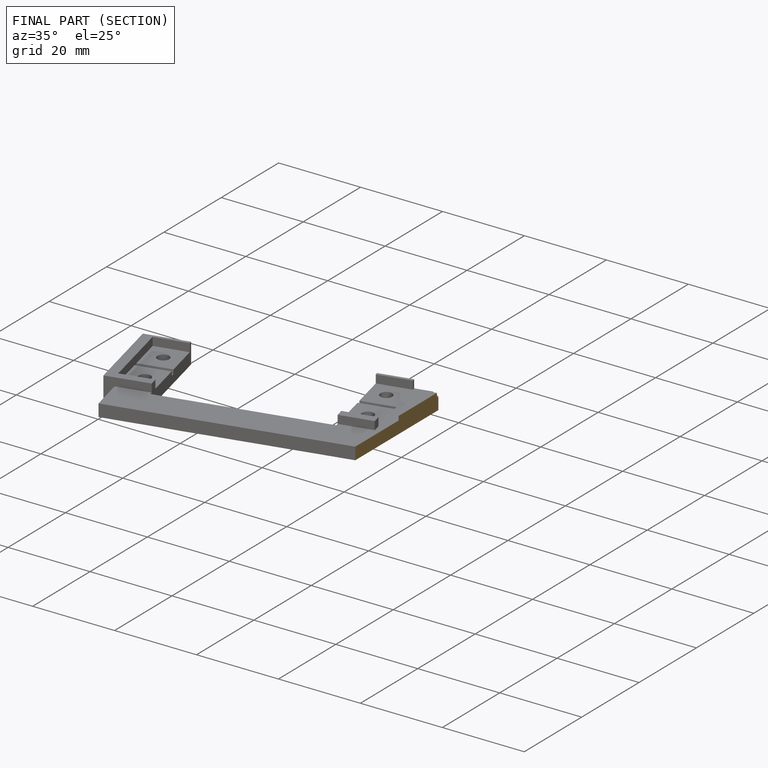
[diagram: finished part — half-section view (interior)]
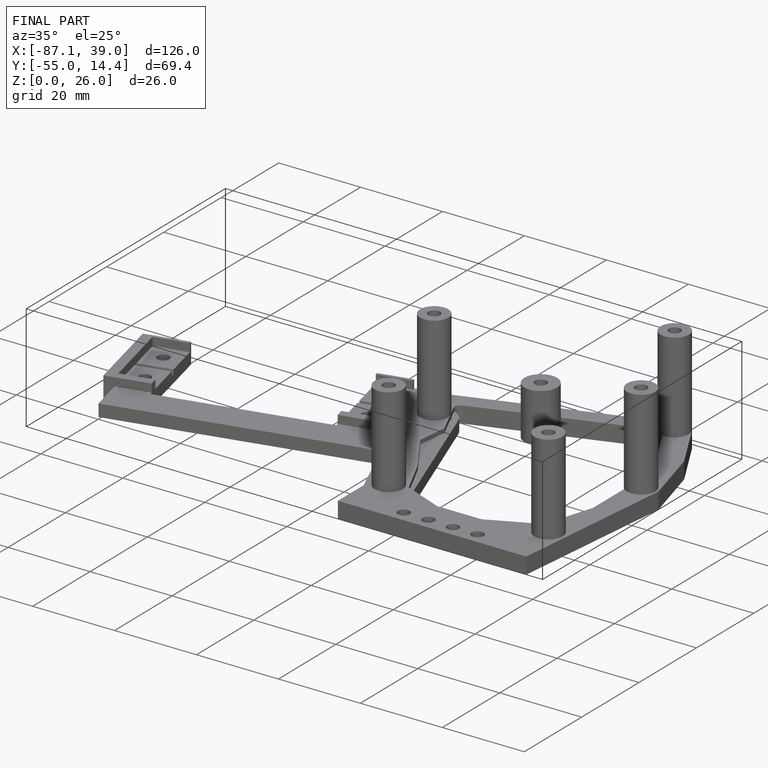
[diagram: finished part — iso view with bounding-box wireframe]
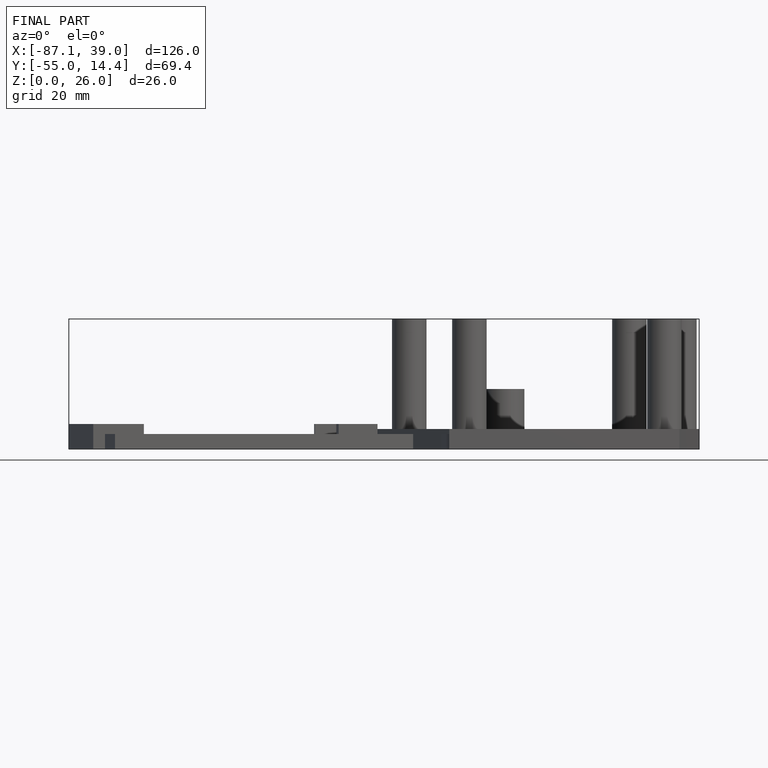
[diagram: finished part — front view with bounding-box wireframe]
